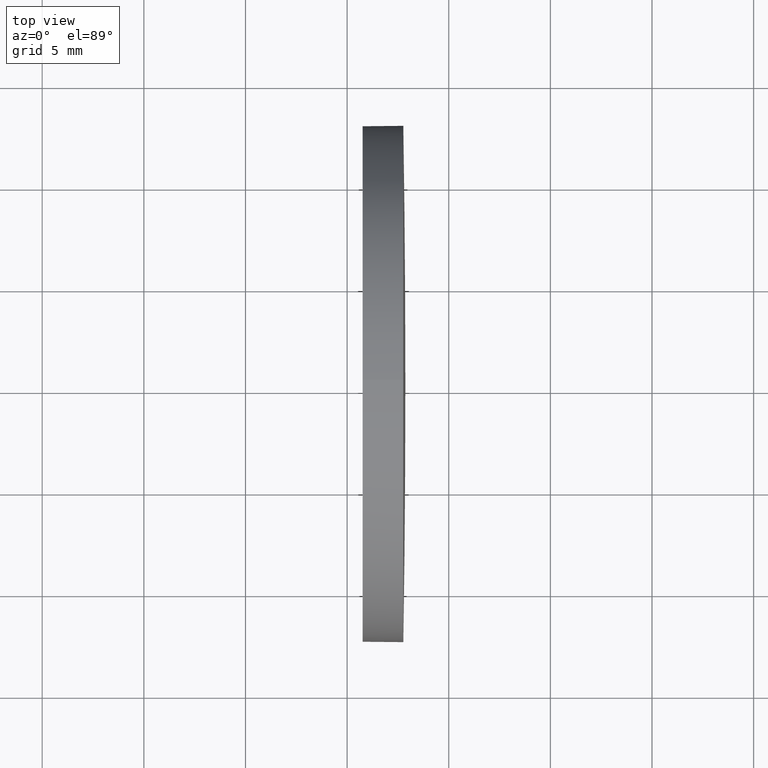
[diagram: clean part render]
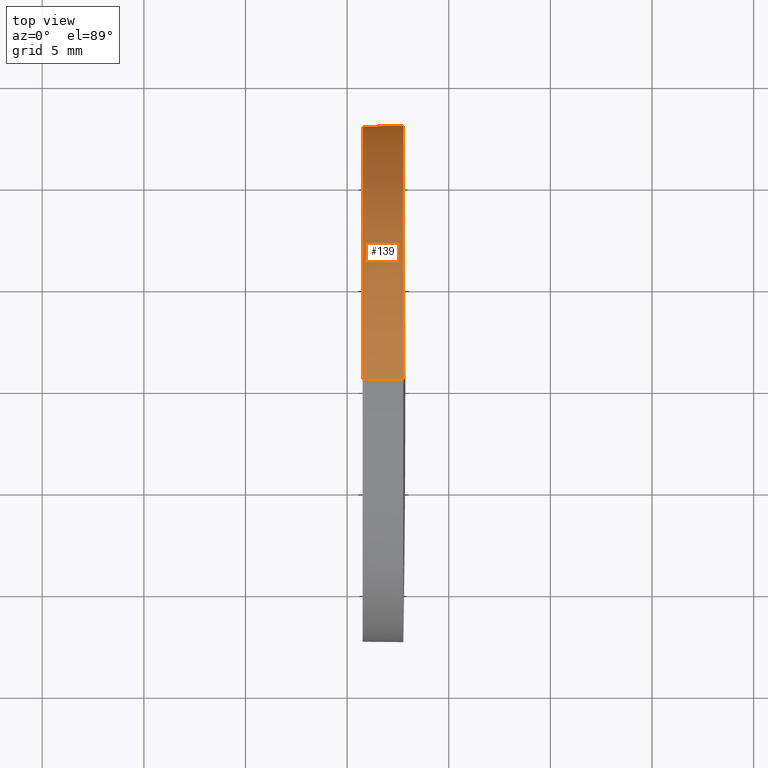
[diagram: same view with one face highlighted and labeled with its STEP entity id]
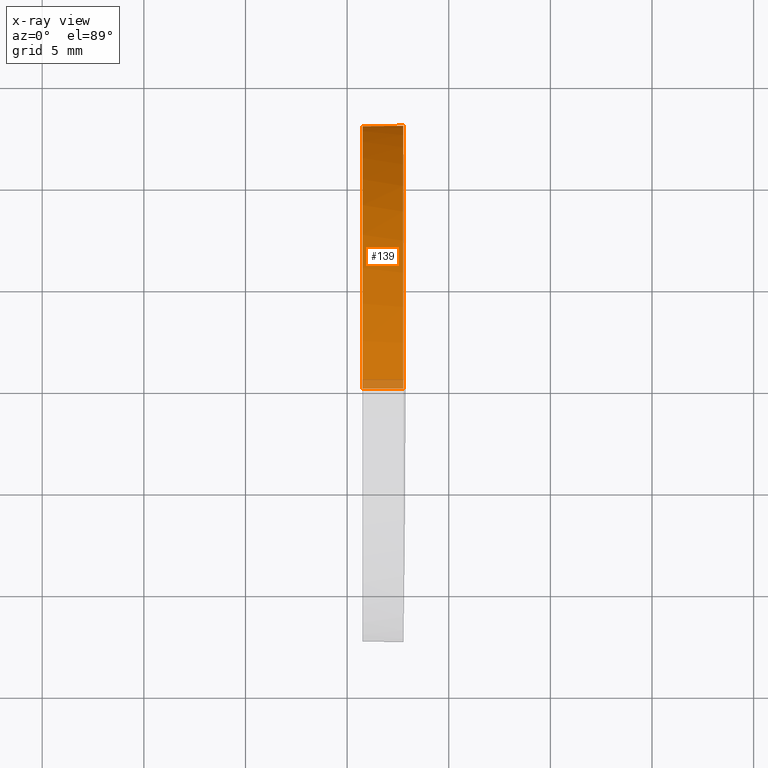
[diagram: x-ray of the same camera — body ghosted, the highlighted face saturated]
A machine part, top view. The second image highlights one B-rep face of the part: STEP entity #139.
The next image is the same camera in x-ray: the body ghosted, the highlighted face saturated — about 3% of this face is hidden behind the body in this view.
In plain terms, the highlighted cylindrical surface (partial cylindrical patch) has radius 12.7 mm, axis along (-1, -0, -0).
Its self-contained STEP definition (entity closure, byte-faithful):
#4 = DIRECTION ( 'NONE',  ( -1.000000000000000000, -0.0000000000000000000, -0.0000000000000000000 ) ) ;
#5 = VERTEX_POINT ( 'NONE', #112 ) ;
#8 = LINE ( 'NONE', #120, #185 ) ;
#10 = ORIENTED_EDGE ( 'NONE', *, *, #183, .F. ) ;
#11 = ORIENTED_EDGE ( 'NONE', *, *, #114, .T. ) ;
#12 = AXIS2_PLACEMENT_3D ( 'NONE', #173, #141, #105 ) ;
#13 = EDGE_CURVE ( 'NONE', #137, #138, #101, .T. ) ;
#21 = CARTESIAN_POINT ( 'NONE',  ( 117.7645554762012000, 65.23355492641219700, -12.70000000000000300 ) ) ;
#35 = AXIS2_PLACEMENT_3D ( 'NONE', #108, #157, #143 ) ;
#40 = CARTESIAN_POINT ( 'NONE',  ( 117.7645554762012000, 65.23355492641219700, 0.0000000000000000000 ) ) ;
#45 = DIRECTION ( 'NONE',  ( 0.0000000000000000000, 0.0000000000000000000, 1.000000000000000000 ) ) ;
#49 = VERTEX_POINT ( 'NONE', #118 ) ;
#52 = CIRCLE ( 'NONE', #134, 12.70000000000000300 ) ;
#62 = VECTOR ( 'NONE', #104, 1000.000000000000000 ) ;
#70 = DIRECTION ( 'NONE',  ( -1.000000000000000000, -0.0000000000000000000, -0.0000000000000000000 ) ) ;
#71 = CARTESIAN_POINT ( 'NONE',  ( 117.7645554762012100, 77.93355492641137500, 0.0000000000000000000 ) ) ;
#80 = ORIENTED_EDGE ( 'NONE', *, *, #91, .F. ) ;
#81 = DIRECTION ( 'NONE',  ( 0.0000000000000000000, 0.0000000000000000000, 1.000000000000000000 ) ) ;
#89 = EDGE_CURVE ( 'NONE', #138, #145, #52, .T. ) ;
#91 = EDGE_CURVE ( 'NONE', #137, #49, #178, .T. ) ;
#101 = CIRCLE ( 'NONE', #35, 12.70000000000000300 ) ;
#104 = DIRECTION ( 'NONE',  ( -1.000000000000000000, -0.0000000000000000000, -0.0000000000000000000 ) ) ;
#105 = DIRECTION ( 'NONE',  ( 0.0000000000000000000, 0.0000000000000000000, 1.000000000000000000 ) ) ;
#108 = CARTESIAN_POINT ( 'NONE',  ( 117.7645554762012000, 65.23355492641219700, 0.0000000000000000000 ) ) ;
#112 = CARTESIAN_POINT ( 'NONE',  ( 115.7645554762012000, 65.23355492641219700, -12.70000000000000300 ) ) ;
#113 = FACE_OUTER_BOUND ( 'NONE', #184, .T. ) ;
#114 = EDGE_CURVE ( 'NONE', #145, #5, #8, .T. ) ;
#115 = ORIENTED_EDGE ( 'NONE', *, *, #13, .T. ) ;
#118 = CARTESIAN_POINT ( 'NONE',  ( 115.7645554762012000, 65.23355492641219700, 12.70000000000000300 ) ) ;
#120 = CARTESIAN_POINT ( 'NONE',  ( 110.1653732284884500, 65.23355492641219700, -12.70000000000000300 ) ) ;
#122 = CYLINDRICAL_SURFACE ( 'NONE', #12, 12.70000000000000300 ) ;
#134 = AXIS2_PLACEMENT_3D ( 'NONE', #40, #70, #81 ) ;
#137 = VERTEX_POINT ( 'NONE', #142 ) ;
#138 = VERTEX_POINT ( 'NONE', #71 ) ;
#139 = ADVANCED_FACE ( 'NONE', ( #113 ), #122, .T. ) ;
#141 = DIRECTION ( 'NONE',  ( -1.000000000000000000, -0.0000000000000000000, -0.0000000000000000000 ) ) ;
#142 = CARTESIAN_POINT ( 'NONE',  ( 117.7645554762012000, 65.23355492641219700, 12.70000000000000300 ) ) ;
#143 = DIRECTION ( 'NONE',  ( 0.0000000000000000000, 0.0000000000000000000, 1.000000000000000000 ) ) ;
#145 = VERTEX_POINT ( 'NONE', #21 ) ;
#146 = CARTESIAN_POINT ( 'NONE',  ( 115.7645554762012000, 65.23355492641219700, 0.0000000000000000000 ) ) ;
#149 = ORIENTED_EDGE ( 'NONE', *, *, #89, .T. ) ;
#157 = DIRECTION ( 'NONE',  ( -1.000000000000000000, -0.0000000000000000000, -0.0000000000000000000 ) ) ;
#169 = CIRCLE ( 'NONE', #171, 12.70000000000000300 ) ;
#171 = AXIS2_PLACEMENT_3D ( 'NONE', #146, #177, #45 ) ;
#173 = CARTESIAN_POINT ( 'NONE',  ( 110.1653732284884500, 65.23355492641219700, 0.0000000000000000000 ) ) ;
#175 = CARTESIAN_POINT ( 'NONE',  ( 110.1653732284884500, 65.23355492641219700, 12.70000000000000300 ) ) ;
#177 = DIRECTION ( 'NONE',  ( -1.000000000000000000, -0.0000000000000000000, -0.0000000000000000000 ) ) ;
#178 = LINE ( 'NONE', #175, #62 ) ;
#183 = EDGE_CURVE ( 'NONE', #49, #5, #169, .T. ) ;
#184 = EDGE_LOOP ( 'NONE', ( #149, #11, #10, #80, #115 ) ) ;
#185 = VECTOR ( 'NONE', #4, 1000.000000000000000 ) ;